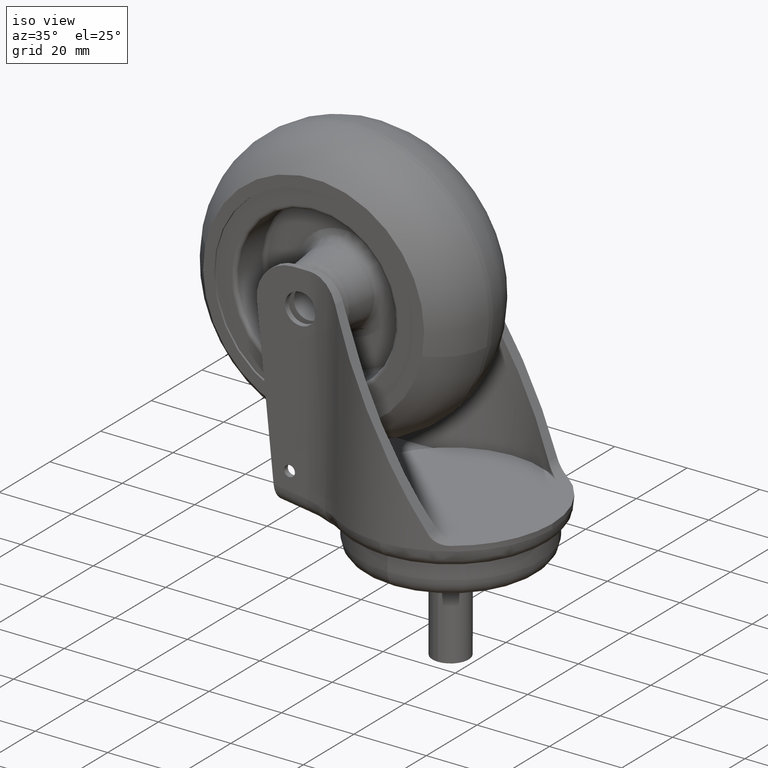
[diagram: clean part render]
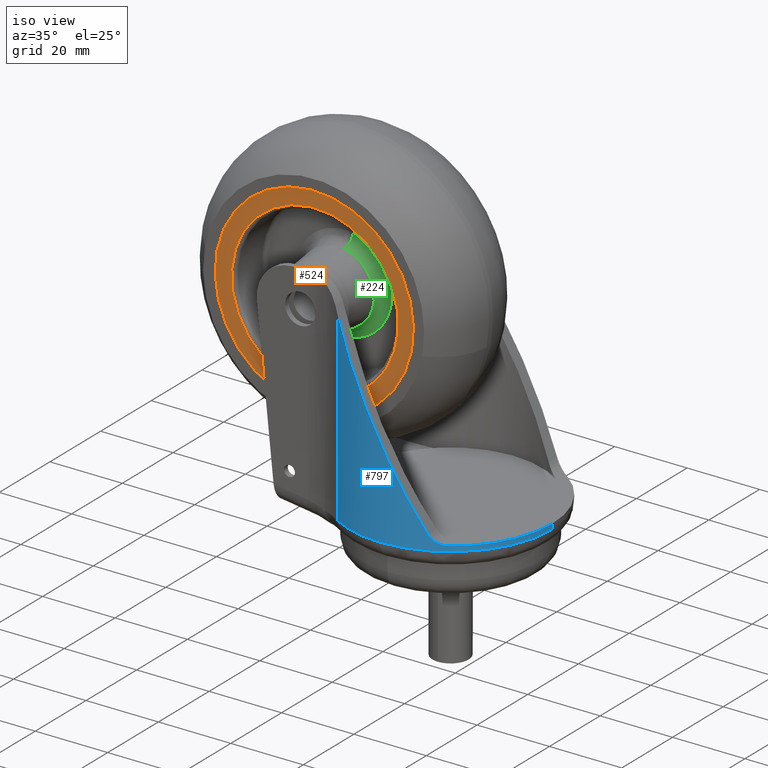
[diagram: same view with three faces highlighted in distinct colors, each labeled with its STEP entity id]
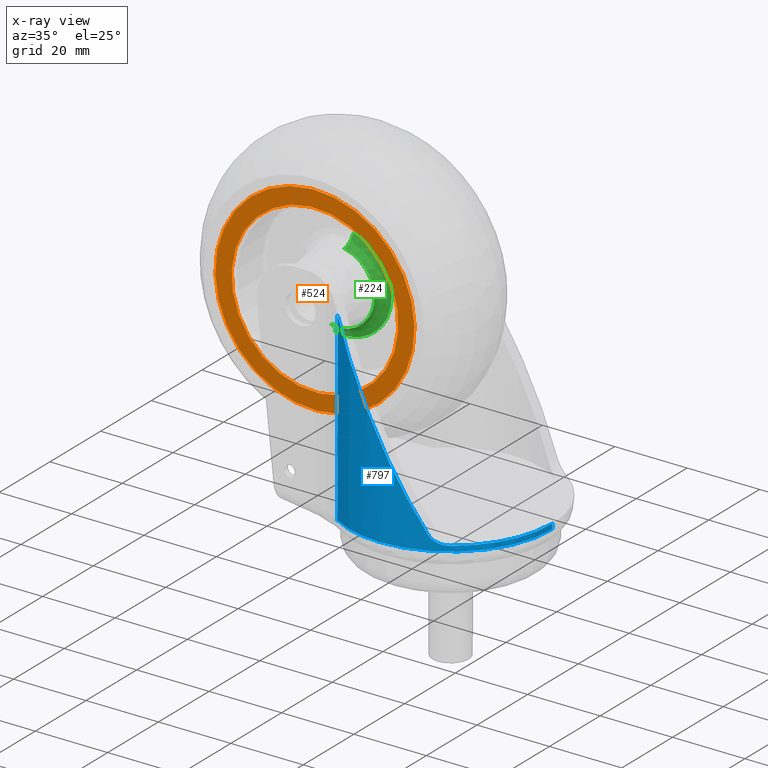
[diagram: x-ray of the same camera — body ghosted, the three highlighted faces saturated]
A machine part, iso view with three faces highlighted in distinct colors.
The next image is the same camera in x-ray (body ghosted, the three faces saturated) — at least one of them is partly hidden behind the body in this view.
Their STEP definitions:

[orange] entity #524 — the highlighted planar face has unit normal (0.0019, -1, 0.0018).
#42 = ORIENTED_EDGE ( 'NONE', *, *, #357, .F. ) ;
#43 = EDGE_CURVE ( 'NONE', #276, #275, #982, .T. ) ;
#44 = ORIENTED_EDGE ( 'NONE', *, *, #43, .F. ) ;
#115 = EDGE_CURVE ( 'NONE', #358, #234, #1318, .T. ) ;
#234 = VERTEX_POINT ( 'NONE', #1660 ) ;
#238 = EDGE_CURVE ( 'NONE', #234, #358, #1700, .T. ) ;
#275 = VERTEX_POINT ( 'NONE', #1968 ) ;
#276 = VERTEX_POINT ( 'NONE', #1962 ) ;
#357 = EDGE_CURVE ( 'NONE', #275, #276, #2254, .T. ) ;
#358 = VERTEX_POINT ( 'NONE', #2250 ) ;
#504 = EDGE_LOOP ( 'NONE', ( #4445, #4447 ) ) ;
#524 = ADVANCED_FACE ( 'NONE', ( #2635, #2636 ), #2632, .T. ) ;
#978 = DIRECTION ( 'NONE',  ( -1.000000000000000000, 0.0000000000000000000, 0.0000000000000000000 ) ) ;
#979 = DIRECTION ( 'NONE',  ( -0.0000000000000000000, -0.0000000000000000000, 1.000000000000000000 ) ) ;
#980 = CARTESIAN_POINT ( 'NONE',  ( 0.0000000000000000000, 0.0000000000000000000, 0.5000000000000000000 ) ) ;
#981 = AXIS2_PLACEMENT_3D ( 'NONE', #980, #979, #978 ) ;
#982 = CIRCLE ( 'NONE', #981, 27.50000000000000000 ) ;
#1314 = DIRECTION ( 'NONE',  ( -1.000000000000000000, 0.0000000000000000000, 0.0000000000000000000 ) ) ;
#1315 = DIRECTION ( 'NONE',  ( -0.0000000000000000000, -0.0000000000000000000, 1.000000000000000000 ) ) ;
#1316 = CARTESIAN_POINT ( 'NONE',  ( 0.0000000000000000000, 0.0000000000000000000, 0.4999999999999971700 ) ) ;
#1317 = AXIS2_PLACEMENT_3D ( 'NONE', #1316, #1315, #1314 ) ;
#1318 = CIRCLE ( 'NONE', #1317, 22.99999997239999800 ) ;
#1653 = CARTESIAN_POINT ( 'NONE',  ( 0.0000000000000000000, 0.0000000000000000000, 0.4999999999999971700 ) ) ;
#1660 = CARTESIAN_POINT ( 'NONE',  ( 22.99999998619999500, 2.816594612101510700E-015, 0.4999999999999970000 ) ) ;
#1697 = DIRECTION ( 'NONE',  ( -1.000000000000000000, 0.0000000000000000000, 0.0000000000000000000 ) ) ;
#1698 = DIRECTION ( 'NONE',  ( -0.0000000000000000000, -0.0000000000000000000, 1.000000000000000000 ) ) ;
#1699 = AXIS2_PLACEMENT_3D ( 'NONE', #1653, #1698, #1697 ) ;
#1700 = CIRCLE ( 'NONE', #1699, 22.99999997239999800 ) ;
#1962 = CARTESIAN_POINT ( 'NONE',  ( 27.50000000000000000, 3.367667473011537500E-015, 0.5000000000000000000 ) ) ;
#1968 = CARTESIAN_POINT ( 'NONE',  ( -27.50000000000000000, 0.0000000000000000000, 0.5000000000000000000 ) ) ;
#2250 = CARTESIAN_POINT ( 'NONE',  ( -22.99999998619999500, 0.0000000000000000000, 0.4999999999999970000 ) ) ;
#2251 = DIRECTION ( 'NONE',  ( -1.000000000000000000, 0.0000000000000000000, 0.0000000000000000000 ) ) ;
#2252 = DIRECTION ( 'NONE',  ( -0.0000000000000000000, -0.0000000000000000000, 1.000000000000000000 ) ) ;
#2253 = AXIS2_PLACEMENT_3D ( 'NONE', #2259, #2252, #2251 ) ;
#2254 = CIRCLE ( 'NONE', #2253, 27.50000000000000000 ) ;
#2259 = CARTESIAN_POINT ( 'NONE',  ( 0.0000000000000000000, 0.0000000000000000000, 0.5000000000000000000 ) ) ;
#2630 = CARTESIAN_POINT ( 'NONE',  ( 27.83000000000000500, -27.83000000000000500, 0.5000000000000000000 ) ) ;
#2631 = AXIS2_PLACEMENT_3D ( 'NONE', #2630, #2679, #2678 ) ;
#2632 = PLANE ( 'NONE',  #2631 ) ;
#2635 = FACE_BOUND ( 'NONE', #504, .T. ) ;
#2636 = FACE_OUTER_BOUND ( 'NONE', #4450, .T. ) ;
#2678 = DIRECTION ( 'NONE',  ( -1.000000000000000000, 0.0000000000000000000, 0.0000000000000000000 ) ) ;
#2679 = DIRECTION ( 'NONE',  ( 0.0000000000000000000, 0.0000000000000000000, -1.000000000000000000 ) ) ;
#4445 = ORIENTED_EDGE ( 'NONE', *, *, #115, .T. ) ;
#4447 = ORIENTED_EDGE ( 'NONE', *, *, #238, .T. ) ;
#4450 = EDGE_LOOP ( 'NONE', ( #42, #44 ) ) ;

[blue] entity #797 — the highlighted cylindrical surface (partial cylindrical patch) has radius 28 mm, axis along (0.0004, -0.0018, -1).
#611 = EDGE_CURVE ( 'NONE', #622, #2749, #2829, .T. ) ;
#620 = EDGE_CURVE ( 'NONE', #621, #622, #2862, .T. ) ;
#621 = VERTEX_POINT ( 'NONE', #2863 ) ;
#622 = VERTEX_POINT ( 'NONE', #2864 ) ;
#649 = VERTEX_POINT ( 'NONE', #2941 ) ;
#673 = VERTEX_POINT ( 'NONE', #2994 ) ;
#675 = EDGE_CURVE ( 'NONE', #673, #621, #3021, .T. ) ;
#706 = EDGE_CURVE ( 'NONE', #649, #673, #3095, .T. ) ;
#797 = ADVANCED_FACE ( 'NONE', ( #3289 ), #3286, .T. ) ;
#798 = EDGE_LOOP ( 'NONE', ( #799, #800, #801, #802, #803, #804, #807 ) ) ;
#799 = ORIENTED_EDGE ( 'NONE', *, *, #2762, .F. ) ;
#800 = ORIENTED_EDGE ( 'NONE', *, *, #611, .F. ) ;
#801 = ORIENTED_EDGE ( 'NONE', *, *, #620, .F. ) ;
#802 = ORIENTED_EDGE ( 'NONE', *, *, #675, .F. ) ;
#803 = ORIENTED_EDGE ( 'NONE', *, *, #706, .F. ) ;
#804 = ORIENTED_EDGE ( 'NONE', *, *, #805, .F. ) ;
#805 = EDGE_CURVE ( 'NONE', #806, #649, #3323, .T. ) ;
#806 = VERTEX_POINT ( 'NONE', #3319 ) ;
#807 = ORIENTED_EDGE ( 'NONE', *, *, #808, .F. ) ;
#808 = EDGE_CURVE ( 'NONE', #2737, #806, #3374, .T. ) ;
#2737 = VERTEX_POINT ( 'NONE', #3581 ) ;
#2749 = VERTEX_POINT ( 'NONE', #3580 ) ;
#2762 = EDGE_CURVE ( 'NONE', #2749, #2737, #3579, .T. ) ;
#2829 = CIRCLE ( 'NONE', #2878, 27.99999999999996100 ) ;
#2844 = CARTESIAN_POINT ( 'NONE',  ( 23.01393247269172400, 55.94863355094688000, 6.000000005548310300 ) ) ;
#2845 = CARTESIAN_POINT ( 'NONE',  ( 23.29655240200954200, 55.54081203107488600, 5.999999999900329500 ) ) ;
#2846 = CARTESIAN_POINT ( 'NONE',  ( 23.56775280416935200, 55.12585690281572000, 6.050187921509298400 ) ) ;
#2847 = CARTESIAN_POINT ( 'NONE',  ( 23.94629834866366700, 54.51318108539644000, 6.205849762226960400 ) ) ;
#2848 = CARTESIAN_POINT ( 'NONE',  ( 24.06822551550755300, 54.30996594885628100, 6.271163318686742400 ) ) ;
#2849 = CARTESIAN_POINT ( 'NONE',  ( 24.30370712182362800, 53.90627286728452100, 6.430985804865145800 ) ) ;
#2850 = CARTESIAN_POINT ( 'NONE',  ( 24.41727905718400700, 53.70566895731793300, 6.525820389434001000 ) ) ;
#2851 = CARTESIAN_POINT ( 'NONE',  ( 24.63065716963273000, 53.31839350357257200, 6.741947551104491500 ) ) ;
#2852 = CARTESIAN_POINT ( 'NONE',  ( 24.73123743525135500, 53.13041735666850900, 6.863672921685750200 ) ) ;
#2853 = CARTESIAN_POINT ( 'NONE',  ( 24.92070933793214800, 52.76715360342238600, 7.136099177263825600 ) ) ;
#2854 = CARTESIAN_POINT ( 'NONE',  ( 25.01023085303414500, 52.59056640006289000, 7.288176208737797700 ) ) ;
#2855 = CARTESIAN_POINT ( 'NONE',  ( 25.25574183194515500, 52.09477337133509400, 7.780564506749428200 ) ) ;
#2856 = CARTESIAN_POINT ( 'NONE',  ( 25.38958211871979400, 51.80829551109377500, 8.155031640080231600 ) ) ;
#2857 = CARTESIAN_POINT ( 'NONE',  ( 25.49634714170517900, 51.57308439568586800, 8.580378194376583800 ) ) ;
#2862 = B_SPLINE_CURVE_WITH_KNOTS ( 'NONE', 3,
 ( #2857, #2856, #2855, #2854, #2853, #2852, #2851, #2850, #2849, #2848, #2847, #2846, #2845, #2844 ),
 .UNSPECIFIED., .F., .F.,
 ( 4, 2, 2, 2, 2, 2, 4 ),
 ( 2.800782441977977300E-012, 0.001470027368630176600, 0.002205041051544873000, 0.002940054734459569200, 0.003675068417374265400, 0.004410082100288961200, 0.005880109466118353700 ),
 .UNSPECIFIED. ) ;
#2863 = CARTESIAN_POINT ( 'NONE',  ( 25.49634714170517900, 51.57308439568586800, 8.580378194376583800 ) ) ;
#2864 = CARTESIAN_POINT ( 'NONE',  ( 23.01393247269172400, 55.94863355094688000, 6.000000005548310300 ) ) ;
#2875 = DIRECTION ( 'NONE',  ( -2.841959862429958500E-014, 1.000000000000000000, -6.195440985631462700E-017 ) ) ;
#2876 = DIRECTION ( 'NONE',  ( 2.168404344970999200E-019, 6.239583502654050900E-017, 1.000000000000000000 ) ) ;
#2877 = CARTESIAN_POINT ( 'NONE',  ( 0.0000000000000000000, 40.00000000000007100, 6.000000011096553000 ) ) ;
#2878 = AXIS2_PLACEMENT_3D ( 'NONE', #2877, #2876, #2875 ) ;
#2941 = CARTESIAN_POINT ( 'NONE',  ( 23.91666662794473600, 25.44001863261550500, 4.582575698354421700 ) ) ;
#2994 = CARTESIAN_POINT ( 'NONE',  ( 23.91666666688644600, 25.44001869672717900, 55.83838887351849000 ) ) ;
#3017 = CARTESIAN_POINT ( 'NONE',  ( 25.49634714170517900, 51.57308439568586800, 8.580378194376583800 ) ) ;
#3018 = CARTESIAN_POINT ( 'NONE',  ( 29.40576235070434700, 42.96035818703045100, 24.15529434978879000 ) ) ;
#3019 = CARTESIAN_POINT ( 'NONE',  ( 28.83506269703815100, 33.51912511465482700, 41.22844981108524800 ) ) ;
#3020 = CARTESIAN_POINT ( 'NONE',  ( 23.91666666688644600, 25.44001869672717900, 55.83838887351849000 ) ) ;
#3021 =( BOUNDED_CURVE ( )  B_SPLINE_CURVE ( 3, ( #3020, #3019, #3018, #3017 ),
 .UNSPECIFIED., .F., .T. ) 
 B_SPLINE_CURVE_WITH_KNOTS ( ( 4, 4 ),
 ( 4.165538811436182900, 5.138490922005777500 ),
 .UNSPECIFIED. ) 
 CURVE ( )  GEOMETRIC_REPRESENTATION_ITEM ( )  RATIONAL_B_SPLINE_CURVE ( ( 1.000000000000000000, 0.9226572242052055700, 0.9226572242052055700, 1.000000000000000000 ) ) 
 REPRESENTATION_ITEM ( '' )  );
#3092 = DIRECTION ( 'NONE',  ( 2.168404344970999200E-019, 4.336808689941998500E-019, 1.000000000000000000 ) ) ;
#3093 = VECTOR ( 'NONE', #3092, 1000.000000000000000 ) ;
#3094 = CARTESIAN_POINT ( 'NONE',  ( 23.91666666711737200, 25.44001869703083300, 33.61603557450025900 ) ) ;
#3095 = LINE ( 'NONE', #3094, #3093 ) ;
#3286 = CYLINDRICAL_SURFACE ( 'NONE', #3288, 27.99999999999996800 ) ;
#3288 = AXIS2_PLACEMENT_3D ( 'NONE', #3326, #3325, #3324 ) ;
#3289 = FACE_OUTER_BOUND ( 'NONE', #798, .T. ) ;
#3318 = CARTESIAN_POINT ( 'NONE',  ( 0.0000000000000000000, 40.00000000000007100, 4.582575695000070200 ) ) ;
#3319 = CARTESIAN_POINT ( 'NONE',  ( 27.99999999997497500, 39.99999999712855500, 4.582575695000000100 ) ) ;
#3320 = DIRECTION ( 'NONE',  ( -1.000000000000000000, 0.0000000000000000000, 0.0000000000000000000 ) ) ;
#3321 = DIRECTION ( 'NONE',  ( -2.168404344970999200E-019, -4.336808689941998500E-019, -1.000000000000000000 ) ) ;
#3322 = AXIS2_PLACEMENT_3D ( 'NONE', #3327, #3321, #3320 ) ;
#3323 = CIRCLE ( 'NONE', #3322, 28.00000000177618300 ) ;
#3324 = DIRECTION ( 'NONE',  ( 2.110806104557659100E-018, 1.000000000000000000, 0.0000000000000000000 ) ) ;
#3325 = DIRECTION ( 'NONE',  ( -2.168404344970999200E-019, -6.239583502654050900E-017, -1.000000000000000000 ) ) ;
#3326 = CARTESIAN_POINT ( 'NONE',  ( -3.469446951953614200E-014, 40.00000000000000700, 29.65824663100025700 ) ) ;
#3327 = CARTESIAN_POINT ( 'NONE',  ( -1.876349770002505600E-009, 39.99999999999997900, 4.582575695000070200 ) ) ;
#3371 = DIRECTION ( 'NONE',  ( -1.000000000000000000, 0.0000000000000000000, 0.0000000000000000000 ) ) ;
#3372 = DIRECTION ( 'NONE',  ( -2.168404344970999200E-019, -4.336808689941998500E-019, -1.000000000000000000 ) ) ;
#3373 = AXIS2_PLACEMENT_3D ( 'NONE', #3318, #3372, #3371 ) ;
#3374 = CIRCLE ( 'NONE', #3373, 28.00000000000006400 ) ;
#3576 = DIRECTION ( 'NONE',  ( -2.168404344970999200E-019, -6.239583502654050900E-017, -1.000000000000000000 ) ) ;
#3577 = VECTOR ( 'NONE', #3576, 1000.000000000000000 ) ;
#3578 = CARTESIAN_POINT ( 'NONE',  ( -3.463536694860852600E-014, 67.99999999999997200, 29.65824663100025700 ) ) ;
#3579 = LINE ( 'NONE', #3578, #3577 ) ;
#3580 = CARTESIAN_POINT ( 'NONE',  ( -3.463521385858947700E-014, 68.00000000000007100, 6.000000011096551200 ) ) ;
#3581 = CARTESIAN_POINT ( 'NONE',  ( -3.464080436798959400E-014, 67.99999999999997200, 4.582575695000070200 ) ) ;

[green] entity #224 — the highlighted face is a freeform B-spline surface patch.
#50 = VERTEX_POINT ( 'NONE', #971 ) ;
#54 = EDGE_CURVE ( 'NONE', #4383, #55, #1158, .T. ) ;
#55 = VERTEX_POINT ( 'NONE', #1047 ) ;
#209 = EDGE_CURVE ( 'NONE', #55, #50, #1476, .T. ) ;
#212 = ORIENTED_EDGE ( 'NONE', *, *, #54, .F. ) ;
#213 = ORIENTED_EDGE ( 'NONE', *, *, #209, .F. ) ;
#214 = EDGE_LOOP ( 'NONE', ( #217, #216, #213, #212 ) ) ;
#215 = EDGE_CURVE ( 'NONE', #50, #4379, #1613, .T. ) ;
#216 = ORIENTED_EDGE ( 'NONE', *, *, #215, .F. ) ;
#217 = ORIENTED_EDGE ( 'NONE', *, *, #4385, .F. ) ;
#224 = ADVANCED_FACE ( 'NONE', ( #1652 ), #1645, .F. ) ;
#970 = CARTESIAN_POINT ( 'NONE',  ( -0.6861557346868574200, 13.18292539414258300, 12.00000000000000200 ) ) ;
#971 = CARTESIAN_POINT ( 'NONE',  ( -13.19574168211199900, 0.0000000000000000000, 12.00000000000000000 ) ) ;
#1047 = CARTESIAN_POINT ( 'NONE',  ( 13.19574168211199700, 0.0000000000000000000, 12.00000000000000000 ) ) ;
#1154 = CARTESIAN_POINT ( 'NONE',  ( 13.19574168211199700, 0.0000000000000000000, 12.00000000000000000 ) ) ;
#1155 = CARTESIAN_POINT ( 'NONE',  ( 11.58365521400000400, 0.0000000000000000000, 12.00000000000000400 ) ) ;
#1156 = CARTESIAN_POINT ( 'NONE',  ( 10.38455482500000200, 0.0000000000000000000, 10.92251170099999900 ) ) ;
#1157 = CARTESIAN_POINT ( 'NONE',  ( 10.21281421800000200, 0.0000000000000000000, 9.319599371000006000 ) ) ;
#1158 =( BOUNDED_CURVE ( )  B_SPLINE_CURVE ( 3, ( #1157, #1156, #1155, #1154 ),
 .UNSPECIFIED., .F., .T. ) 
 B_SPLINE_CURVE_WITH_KNOTS ( ( 4, 4 ),
 ( 0.0000000000000000000, 1.000000000000000000 ),
 .UNSPECIFIED. ) 
 CURVE ( )  GEOMETRIC_REPRESENTATION_ITEM ( )  RATIONAL_B_SPLINE_CURVE ( ( 1.000000000000000000, 0.8292126026081271300, 0.8292126026081271300, 1.000000000000000000 ) ) 
 REPRESENTATION_ITEM ( '' )  );
#1232 = CARTESIAN_POINT ( 'NONE',  ( -1.507810224673058300, 13.11001658916897300, 12.00000000000000000 ) ) ;
#1233 = CARTESIAN_POINT ( 'NONE',  ( -1.369983834658605500, 13.12515191411409000, 11.99999999999999800 ) ) ;
#1238 = CARTESIAN_POINT ( 'NONE',  ( -1.096585602367908600, 13.15083028864955100, 12.00000000000000000 ) ) ;
#1446 = CARTESIAN_POINT ( 'NONE',  ( 11.37715869186486400, 6.707991119252446000, 12.00000000000000000 ) ) ;
#1447 = CARTESIAN_POINT ( 'NONE',  ( 11.67786157447173200, 6.158807824908294900, 11.99999999999999800 ) ) ;
#1448 = CARTESIAN_POINT ( 'NONE',  ( 11.86707456287641100, 5.770641027297453500, 12.00000000000000000 ) ) ;
#1449 = CARTESIAN_POINT ( 'NONE',  ( 11.87158266843757900, 5.761357503660608600, 12.00000000000000000 ) ) ;
#1450 = CARTESIAN_POINT ( 'NONE',  ( 11.88178103518647600, 5.740294822919153700, 12.00000000000000000 ) ) ;
#1451 = CARTESIAN_POINT ( 'NONE',  ( 11.89703511957618800, 5.708684274932988200, 12.00000000000000200 ) ) ;
#1452 = CARTESIAN_POINT ( 'NONE',  ( 11.93232372301675800, 5.634810641514090600, 12.00000000000000200 ) ) ;
#1453 = CARTESIAN_POINT ( 'NONE',  ( 12.00168388935622600, 5.486600622204880700, 12.00000000000000000 ) ) ;
#1454 = CARTESIAN_POINT ( 'NONE',  ( 12.13553605986845300, 5.188329573700827700, 11.99999999999999800 ) ) ;
#1455 = CARTESIAN_POINT ( 'NONE',  ( 12.38376775222610600, 4.584383437150169300, 12.00000000000000200 ) ) ;
#1456 = CARTESIAN_POINT ( 'NONE',  ( 12.56315609081812400, 4.054022680890944300, 11.99999999999999800 ) ) ;
#1457 = CARTESIAN_POINT ( 'NONE',  ( 12.67118563536193500, 3.683582201322155300, 12.00000000000000200 ) ) ;
#1458 = CARTESIAN_POINT ( 'NONE',  ( 12.67371171359811800, 3.674876684289475100, 12.00000000000000400 ) ) ;
#1459 = CARTESIAN_POINT ( 'NONE',  ( 12.67947555856836500, 3.654938368976657200, 12.00000000000000000 ) ) ;
#1460 = CARTESIAN_POINT ( 'NONE',  ( 12.68808547019586400, 3.625023566805142900, 12.00000000000000400 ) ) ;
#1461 = CARTESIAN_POINT ( 'NONE',  ( 12.70792427319826800, 3.555171057322196400, 12.00000000000000000 ) ) ;
#1462 = CARTESIAN_POINT ( 'NONE',  ( 12.74659791602272900, 3.415260820692052500, 12.00000000000000400 ) ) ;
#1463 = CARTESIAN_POINT ( 'NONE',  ( 12.81992934895021100, 3.134619476774753700, 12.00000000000000000 ) ) ;
#1464 = CARTESIAN_POINT ( 'NONE',  ( 12.95052880391945700, 2.570053306312056800, 12.00000000000000400 ) ) ;
#1465 = CARTESIAN_POINT ( 'NONE',  ( 13.03493391808899600, 2.080510618553032700, 12.00000000000000200 ) ) ;
#1466 = CARTESIAN_POINT ( 'NONE',  ( 13.08034118267034000, 1.741370141510923300, 12.00000000000000400 ) ) ;
#1467 = CARTESIAN_POINT ( 'NONE',  ( 13.08138716642244500, 1.733486265240548300, 12.00000000000000500 ) ) ;
#1468 = CARTESIAN_POINT ( 'NONE',  ( 13.08378065056979800, 1.715323385987396000, 12.00000000000000200 ) ) ;
#1469 = CARTESIAN_POINT ( 'NONE',  ( 13.08734239947150100, 1.688077048277683500, 12.00000000000000000 ) ) ;
#1470 = CARTESIAN_POINT ( 'NONE',  ( 13.09545380567349900, 1.624488128478506900, 11.99999999999999600 ) ) ;
#1471 = CARTESIAN_POINT ( 'NONE',  ( 13.11087925313626100, 1.497253761640706400, 12.00000000000000200 ) ) ;
#1472 = CARTESIAN_POINT ( 'NONE',  ( 13.13854068829680000, 1.242558919007337600, 12.00000000000000000 ) ) ;
#1473 = CARTESIAN_POINT ( 'NONE',  ( 13.18110571955797800, 0.7322647979094850700, 11.99999999999999600 ) ) ;
#1474 = CARTESIAN_POINT ( 'NONE',  ( 13.19571945082200400, 0.2933193755437271100, 12.00000000000000200 ) ) ;
#1475 = CARTESIAN_POINT ( 'NONE',  ( 13.19574168211199700, 0.0000000000000000000, 12.00000000000000000 ) ) ;
#1476 = B_SPLINE_CURVE_WITH_KNOTS ( 'NONE', 3,
 ( #1475, #1474, #1473, #1472, #1471, #1470, #1469, #1468, #1467, #1466, #1465, #1464, #1463, #1462, #1461, #1460, #1459, #1458, #1457, #1456, #1455, #1454, #1453, #1452, #1451, #1450, #1449, #1448, #1447, #1446, #1537, #1536, #1535, #1534, #1533, #1532, #1531, #1530, #1529, #1528, #1527, #1526, #1525, #1524, #1523, #1522, #1521, #1520, #1519, #1518, #1517, #1516, #1515, #1514, #1513, #1512, #1511, #1510, #1509, #1508, #1506, #1505, #1504, #1503, #1502, #1501, #1500, #1499, #1498, #1497, #1496, #1495, #1494, #1493, #1492, #1491, #1490, #1489, #1488, #1487, #970, #1238, #1233, #1232, #1608, #1607, #1606, #1605, #1604, #1603, #1602, #1601, #1600, #1599, #1598, #1597, #1596, #1595, #1594, #1593, #1592, #1591, #1590, #1589, #1588, #1587, #1586, #1585, #1584, #1583, #1582, #1581, #1580, #1579, #1578, #1577, #1576, #1575, #1574, #1573, #1572, #1571, #1570, #1569, #1568, #1567, #1566, #1565, #1564, #1563, #1562, #1561, #1560, #1559, #1634, #1633, #1632, #1631, #1630, #1629, #1628, #1627, #1626, #1625, #1624, #1623, #1622, #1621, #1620, #1619, #1618, #1617, #1616, #1615, #1614 ),
 .UNSPECIFIED., .F., .F.,
 ( 4, 1, 1, 1, 1, 1, 2, 2, 1, 1, 1, 1, 1, 2, 2, 1, 1, 1, 1, 1, 2, 2, 1, 1, 1, 1, 2, 2, 1, 1, 1, 2, 2, 1, 1, 1, 2, 2, 1, 1, 2, 2, 1, 1, 2, 2, 1, 1, 2, 2, 1, 2, 2, 2, 2, 2, 1, 2, 2, 1, 1, 2, 2, 1, 1, 2, 2, 1, 1, 2, 2, 1, 1, 1, 2, 2, 1, 1, 1, 2, 2, 1, 1, 1, 1, 1, 2, 2, 1, 1, 1, 1, 1, 2, 2, 1, 1, 1, 1, 1, 2, 2, 1, 1, 1, 1, 1, 2, 2, 4 ),
 ( 0.0000000000000000000, 0.03125000000000399000, 0.04687500000000596700, 0.05468750000000694600, 0.05859375000000744500, 0.06054687500000768100, 0.06152343750000779900, 0.06250000000000791000, 0.09375000000001187900, 0.1093750000000138600, 0.1171875000000148500, 0.1210937500000153200, 0.1230468750000155600, 0.1240234375000156500, 0.1250000000000157400, 0.1562500000000182400, 0.1718750000000194600, 0.1796875000000201000, 0.1835937500000203700, 0.1855468750000205100, 0.1865234375000205700, 0.1875000000000206200, 0.2187500000000225400, 0.2343750000000234300, 0.2421875000000238700, 0.2460937500000241200, 0.2480468750000242600, 0.2500000000000243700, 0.2656250000000258700, 0.2734375000000265300, 0.2773437500000269200, 0.2792968750000270300, 0.2812500000000272000, 0.2968750000000278700, 0.3046875000000281400, 0.3085937500000283100, 0.3105468750000282600, 0.3125000000000282600, 0.3281250000000277600, 0.3359375000000275300, 0.3398437500000274200, 0.3437500000000273100, 0.3593750000000270300, 0.3671875000000268700, 0.3710937500000268100, 0.3750000000000267000, 0.3906250000000265300, 0.3984375000000264200, 0.4023437500000264200, 0.4062500000000264200, 0.4218750000000262600, 0.4296875000000261500, 0.4375000000000260300, 0.4531250000000258100, 0.4687500000000255900, 0.5000000000000252000, 0.5156250000000249800, 0.5234375000000248700, 0.5312500000000247600, 0.5468750000000245400, 0.5546875000000244200, 0.5585937500000243100, 0.5625000000000243100, 0.5781250000000242000, 0.5859375000000240900, 0.5898437500000239800, 0.5937500000000239800, 0.6093750000000239800, 0.6171875000000239800, 0.6210937500000239800, 0.6250000000000240900, 0.6406250000000240900, 0.6484375000000239800, 0.6523437500000238700, 0.6542968750000238700, 0.6562500000000239800, 0.6718750000000238700, 0.6796875000000238700, 0.6835937500000237600, 0.6855468750000236500, 0.6875000000000236500, 0.7187500000000228700, 0.7343750000000224300, 0.7421875000000222000, 0.7460937500000219800, 0.7480468750000219800, 0.7490234375000218700, 0.7500000000000217600, 0.7812500000000207600, 0.7968750000000202100, 0.8046875000000198700, 0.8085937500000197600, 0.8105468750000196500, 0.8115234375000196500, 0.8125000000000196500, 0.8437500000000171000, 0.8593750000000157700, 0.8671875000000151000, 0.8710937500000148800, 0.8730468750000146500, 0.8740234375000145400, 0.8750000000000144300, 0.9062500000000112100, 0.9218750000000095500, 0.9296875000000087700, 0.9335937500000084400, 0.9355468750000082200, 0.9365234375000081000, 0.9375000000000079900, 1.000000000000000000 ),
 .UNSPECIFIED. ) ;
#1487 = CARTESIAN_POINT ( 'NONE',  ( -0.2747283092707552600, 13.19575313070515900, 12.00000000000000200 ) ) ;
#1488 = CARTESIAN_POINT ( 'NONE',  ( 0.5494566185415024100, 13.19571877858966000, 11.99999999999999800 ) ) ;
#1489 = CARTESIAN_POINT ( 'NONE',  ( 1.097871702115660800, 13.16148854917344800, 11.99999999999999800 ) ) ;
#1490 = CARTESIAN_POINT ( 'NONE',  ( 1.915638470498589400, 13.05883235031598800, 12.00000000000000000 ) ) ;
#1491 = CARTESIAN_POINT ( 'NONE',  ( 2.183064819588838000, 13.01677534785082100, 11.99999999999999800 ) ) ;
#1492 = CARTESIAN_POINT ( 'NONE',  ( 2.718109159482287500, 12.91566460645363900, 12.00000000000000200 ) ) ;
#1493 = CARTESIAN_POINT ( 'NONE',  ( 2.983974352098634200, 12.85683090042853400, 11.99999999999999600 ) ) ;
#1494 = CARTESIAN_POINT ( 'NONE',  ( 3.380286675027608800, 12.75616283840111000, 12.00000000000000000 ) ) ;
#1495 = CARTESIAN_POINT ( 'NONE',  ( 3.508058560589713900, 12.72160091280487900, 11.99999999999999800 ) ) ;
#1496 = CARTESIAN_POINT ( 'NONE',  ( 3.765999241591844200, 12.64765553577196800, 12.00000000000000200 ) ) ;
#1497 = CARTESIAN_POINT ( 'NONE',  ( 4.150974950892061700, 12.53091003946171600, 12.00000000000000400 ) ) ;
#1498 = CARTESIAN_POINT ( 'NONE',  ( 4.530144723583355000, 12.39668225086885700, 11.99999999999999800 ) ) ;
#1499 = CARTESIAN_POINT ( 'NONE',  ( 4.842894013821144500, 12.27511337577334600, 11.99999999999999800 ) ) ;
#1500 = CARTESIAN_POINT ( 'NONE',  ( 4.902597080043662500, 12.25138275790214100, 11.99999999999999600 ) ) ;
#1501 = CARTESIAN_POINT ( 'NONE',  ( 5.024223030039968800, 12.20201181578257500, 12.00000000000000000 ) ) ;
#1502 = CARTESIAN_POINT ( 'NONE',  ( 5.206034980760655600, 12.12662885337395700, 12.00000000000000000 ) ) ;
#1503 = CARTESIAN_POINT ( 'NONE',  ( 5.625874045859193400, 11.94144942981566400, 12.00000000000000200 ) ) ;
#1504 = CARTESIAN_POINT ( 'NONE',  ( 5.978212410372687000, 11.76680561887167700, 11.99999999999999800 ) ) ;
#1505 = CARTESIAN_POINT ( 'NONE',  ( 6.267647885642120700, 11.61242544822325200, 12.00000000000000000 ) ) ;
#1506 = CARTESIAN_POINT ( 'NONE',  ( 6.322084264755363700, 11.58286853491505600, 11.99999999999999100 ) ) ;
#1508 = CARTESIAN_POINT ( 'NONE',  ( 6.433673523723988400, 11.52126290125531800, 11.99999999999999800 ) ) ;
#1509 = CARTESIAN_POINT ( 'NONE',  ( 6.600323196978412600, 11.42768176454384000, 12.00000000000000400 ) ) ;
#1510 = CARTESIAN_POINT ( 'NONE',  ( 6.984032928182504200, 11.20111697533066500, 12.00000000000000400 ) ) ;
#1511 = CARTESIAN_POINT ( 'NONE',  ( 7.304116401118196000, 10.99284634991411900, 12.00000000000000000 ) ) ;
#1512 = CARTESIAN_POINT ( 'NONE',  ( 7.565957860574545900, 10.81146958725455900, 12.00000000000000200 ) ) ;
#1513 = CARTESIAN_POINT ( 'NONE',  ( 7.614533602261808200, 10.77729997857476400, 11.99999999999999500 ) ) ;
#1514 = CARTESIAN_POINT ( 'NONE',  ( 7.714673204039274700, 10.70584821321170200, 12.00000000000000000 ) ) ;
#1515 = CARTESIAN_POINT ( 'NONE',  ( 7.864078174904404900, 10.59766376101575200, 12.00000000000000200 ) ) ;
#1516 = CARTESIAN_POINT ( 'NONE',  ( 8.207058750982250600, 10.33818574349899300, 12.00000000000000200 ) ) ;
#1517 = CARTESIAN_POINT ( 'NONE',  ( 8.491388920293298200, 10.10369436438258000, 11.99999999999999800 ) ) ;
#1518 = CARTESIAN_POINT ( 'NONE',  ( 8.699809956470185000, 9.921785005137103000, 11.99999999999999800 ) ) ;
#1519 = CARTESIAN_POINT ( 'NONE',  ( 8.721096137243256100, 9.903075467329513200, 12.00000000000000200 ) ) ;
#1520 = CARTESIAN_POINT ( 'NONE',  ( 8.765330489052626500, 9.863943785863778400, 12.00000000000000000 ) ) ;
#1521 = CARTESIAN_POINT ( 'NONE',  ( 8.831472294894457100, 9.805036271034298400, 11.99999999999999800 ) ) ;
#1522 = CARTESIAN_POINT ( 'NONE',  ( 8.984335122086436700, 9.666115454682787000, 12.00000000000000400 ) ) ;
#1523 = CARTESIAN_POINT ( 'NONE',  ( 9.284188564047873600, 9.382394028315427900, 12.00000000000000000 ) ) ;
#1524 = CARTESIAN_POINT ( 'NONE',  ( 9.531139150147659200, 9.129124588004566800, 11.99999999999999600 ) ) ;
#1525 = CARTESIAN_POINT ( 'NONE',  ( 9.711318764788922300, 8.934132684630572600, 12.00000000000000200 ) ) ;
#1526 = CARTESIAN_POINT ( 'NONE',  ( 9.729528625676836700, 8.914293105082499800, 11.99999999999999800 ) ) ;
#1527 = CARTESIAN_POINT ( 'NONE',  ( 9.767547874806416200, 8.872617495889965500, 12.00000000000000200 ) ) ;
#1528 = CARTESIAN_POINT ( 'NONE',  ( 9.824366179560090700, 8.809933819498256800, 12.00000000000000000 ) ) ;
#1529 = CARTESIAN_POINT ( 'NONE',  ( 9.955468241400430100, 8.662480069697242200, 12.00000000000000200 ) ) ;
#1530 = CARTESIAN_POINT ( 'NONE',  ( 10.21177643474155300, 8.362805217213814800, 12.00000000000000200 ) ) ;
#1531 = CARTESIAN_POINT ( 'NONE',  ( 10.42136186273756400, 8.097768453002737800, 11.99999999999999800 ) ) ;
#1532 = CARTESIAN_POINT ( 'NONE',  ( 10.57349727915780400, 7.894904577374650700, 11.99999999999999800 ) ) ;
#1533 = CARTESIAN_POINT ( 'NONE',  ( 10.58795655058776000, 7.875495308703047000, 11.99999999999999800 ) ) ;
#1534 = CARTESIAN_POINT ( 'NONE',  ( 10.61912066350066100, 7.833425117556682700, 12.00000000000000400 ) ) ;
#1535 = CARTESIAN_POINT ( 'NONE',  ( 10.66566773919515800, 7.770199338987707100, 12.00000000000000200 ) ) ;
#1536 = CARTESIAN_POINT ( 'NONE',  ( 10.77288392675829500, 7.621829079380806800, 12.00000000000000400 ) ) ;
#1537 = CARTESIAN_POINT ( 'NONE',  ( 10.98174167898853200, 7.321714788383157000, 12.00000000000000000 ) ) ;
#1559 = CARTESIAN_POINT ( 'NONE',  ( -11.85621650823002700, 5.792914081084510300, 12.00000000000000200 ) ) ;
#1560 = CARTESIAN_POINT ( 'NONE',  ( -11.84984573854357100, 5.805937025859537700, 12.00000000000000000 ) ) ;
#1561 = CARTESIAN_POINT ( 'NONE',  ( -11.83830112879438600, 5.829439842515462500, 12.00000000000000000 ) ) ;
#1562 = CARTESIAN_POINT ( 'NONE',  ( -11.82093470183291300, 5.864663515823818500, 12.00000000000000000 ) ) ;
#1563 = CARTESIAN_POINT ( 'NONE',  ( -11.78006645255879700, 5.946638225147959900, 12.00000000000000000 ) ) ;
#1564 = CARTESIAN_POINT ( 'NONE',  ( -11.69694360855471300, 6.109732196881436600, 12.00000000000000000 ) ) ;
#1565 = CARTESIAN_POINT ( 'NONE',  ( -11.52515253872300200, 6.432498352689204800, 12.00000000000000000 ) ) ;
#1566 = CARTESIAN_POINT ( 'NONE',  ( -11.15938887176550400, 7.064343513668004200, 12.00000000000000200 ) ) ;
#1567 = CARTESIAN_POINT ( 'NONE',  ( -10.80785168186921300, 7.582461393415425000, 11.99999999999999800 ) ) ;
#1568 = CARTESIAN_POINT ( 'NONE',  ( -10.54874152094159000, 7.927913245955764400, 12.00000000000000000 ) ) ;
#1569 = CARTESIAN_POINT ( 'NONE',  ( -10.53920579040807600, 7.940587298096635200, 11.99999999999999800 ) ) ;
#1570 = CARTESIAN_POINT ( 'NONE',  ( -10.52176638245206400, 7.963681087282567200, 12.00000000000000200 ) ) ;
#1571 = CARTESIAN_POINT ( 'NONE',  ( -10.49555541615396900, 7.998273270150763300, 12.00000000000000000 ) ) ;
#1572 = CARTESIAN_POINT ( 'NONE',  ( -10.43403351424319700, 8.078648857134924200, 11.99999999999999600 ) ) ;
#1573 = CARTESIAN_POINT ( 'NONE',  ( -10.30953778822748400, 8.238042005603462700, 12.00000000000000200 ) ) ;
#1574 = CARTESIAN_POINT ( 'NONE',  ( -10.05473864741931300, 8.551396200541358200, 11.99999999999999800 ) ) ;
#1575 = CARTESIAN_POINT ( 'NONE',  ( -9.521909610696075900, 9.156376182420451900, 12.00000000000000200 ) ) ;
#1576 = CARTESIAN_POINT ( 'NONE',  ( -9.025374856178583400, 9.637681753179590400, 12.00000000000000400 ) ) ;
#1577 = CARTESIAN_POINT ( 'NONE',  ( -8.654856889023085000, 9.961016868850929700, 11.99999999999999800 ) ) ;
#1578 = CARTESIAN_POINT ( 'NONE',  ( -8.630203650938908000, 9.982388494350894700, 12.00000000000000200 ) ) ;
#1579 = CARTESIAN_POINT ( 'NONE',  ( -8.583560477864837800, 10.02252320216298600, 12.00000000000000400 ) ) ;
#1580 = CARTESIAN_POINT ( 'NONE',  ( -8.513400957802380400, 10.08246863350672000, 12.00000000000000200 ) ) ;
#1581 = CARTESIAN_POINT ( 'NONE',  ( -8.348332087830588200, 10.22054489402120400, 11.99999999999999600 ) ) ;
#1582 = CARTESIAN_POINT ( 'NONE',  ( -8.012741055249451300, 10.48951176456666300, 12.00000000000000000 ) ) ;
#1583 = CARTESIAN_POINT ( 'NONE',  ( -7.715743097086927600, 10.70773653849101800, 12.00000000000000200 ) ) ;
#1584 = CARTESIAN_POINT ( 'NONE',  ( -7.488320377632819100, 10.86524598994840200, 11.99999999999999800 ) ) ;
#1585 = CARTESIAN_POINT ( 'NONE',  ( -7.461089811524645100, 10.88396554263273500, 11.99999999999999800 ) ) ;
#1586 = CARTESIAN_POINT ( 'NONE',  ( -7.408413301921304300, 10.91988881513325700, 12.00000000000000200 ) ) ;
#1587 = CARTESIAN_POINT ( 'NONE',  ( -7.329221785071587700, 10.97347639353829700, 12.00000000000000400 ) ) ;
#1588 = CARTESIAN_POINT ( 'NONE',  ( -7.143204311975942700, 11.09643276406318400, 11.99999999999999600 ) ) ;
#1589 = CARTESIAN_POINT ( 'NONE',  ( -6.766220297332790100, 11.33402025543223600, 12.00000000000000400 ) ) ;
#1590 = CARTESIAN_POINT ( 'NONE',  ( -6.434607024578339100, 11.52339482001014700, 12.00000000000000000 ) ) ;
#1591 = CARTESIAN_POINT ( 'NONE',  ( -6.153549232090711900, 11.67327814793863900, 12.00000000000000400 ) ) ;
#1592 = CARTESIAN_POINT ( 'NONE',  ( -6.093628438850905700, 11.70467997970437500, 12.00000000000000200 ) ) ;
#1593 = CARTESIAN_POINT ( 'NONE',  ( -5.976898946880795400, 11.76471820539285000, 12.00000000000000000 ) ) ;
#1594 = CARTESIAN_POINT ( 'NONE',  ( -5.801207568692850800, 11.85343527226258200, 12.00000000000000000 ) ) ;
#1595 = CARTESIAN_POINT ( 'NONE',  ( -5.387081037958208400, 12.05105985998459900, 12.00000000000000200 ) ) ;
#1596 = CARTESIAN_POINT ( 'NONE',  ( -5.024949757392330500, 12.20436910379078700, 12.00000000000000000 ) ) ;
#1597 = CARTESIAN_POINT ( 'NONE',  ( -4.719192755368903900, 12.32319166254286300, 11.99999999999999800 ) ) ;
#1598 = CARTESIAN_POINT ( 'NONE',  ( -4.654923237066972400, 12.34762036066891600, 11.99999999999999800 ) ) ;
#1599 = CARTESIAN_POINT ( 'NONE',  ( -4.529050475628530100, 12.39434645704149700, 11.99999999999999600 ) ) ;
#1600 = CARTESIAN_POINT ( 'NONE',  ( -4.339789490739041100, 12.46296848809647900, 12.00000000000000400 ) ) ;
#1601 = CARTESIAN_POINT ( 'NONE',  ( -3.895017626874116800, 12.61281676603093200, 12.00000000000000400 ) ) ;
#1602 = CARTESIAN_POINT ( 'NONE',  ( -3.508362487922257200, 12.72365278507095500, 11.99999999999999800 ) ) ;
#1603 = CARTESIAN_POINT ( 'NONE',  ( -3.183137587250202600, 12.80623537757841400, 11.99999999999999800 ) ) ;
#1604 = CARTESIAN_POINT ( 'NONE',  ( -3.115807330590494800, 12.82278921265946000, 11.99999999999999800 ) ) ;
#1605 = CARTESIAN_POINT ( 'NONE',  ( -2.983154924160530600, 12.85430103259535500, 11.99999999999999800 ) ) ;
#1606 = CARTESIAN_POINT ( 'NONE',  ( -2.783899144879736100, 12.90001022885255500, 12.00000000000000400 ) ) ;
#1607 = CARTESIAN_POINT ( 'NONE',  ( -2.317028805773605700, 12.99575528459279600, 12.00000000000000200 ) ) ;
#1608 = CARTESIAN_POINT ( 'NONE',  ( -1.913528193766728800, 13.05912007146748100, 12.00000000000000000 ) ) ;
#1609 = CARTESIAN_POINT ( 'NONE',  ( -10.21281421800000200, -1.047341605450960500E-009, 9.319599371000002500 ) ) ;
#1610 = CARTESIAN_POINT ( 'NONE',  ( -10.38455482500000200, 0.0000000000000000000, 10.92251170099999900 ) ) ;
#1611 = CARTESIAN_POINT ( 'NONE',  ( -11.58365521400000400, 0.0000000000000000000, 12.00000000000000400 ) ) ;
#1612 = CARTESIAN_POINT ( 'NONE',  ( -13.19574168211199900, 0.0000000000000000000, 12.00000000000000000 ) ) ;
#1613 =( BOUNDED_CURVE ( )  B_SPLINE_CURVE ( 3, ( #1612, #1611, #1610, #1609 ),
 .UNSPECIFIED., .F., .T. ) 
 B_SPLINE_CURVE_WITH_KNOTS ( ( 4, 4 ),
 ( 0.0000000000000000000, 1.000000000000000000 ),
 .UNSPECIFIED. ) 
 CURVE ( )  GEOMETRIC_REPRESENTATION_ITEM ( )  RATIONAL_B_SPLINE_CURVE ( ( 1.000000000000000000, 0.8292126026081271300, 0.8292126026081271300, 1.000000000000000000 ) ) 
 REPRESENTATION_ITEM ( '' )  );
#1614 = CARTESIAN_POINT ( 'NONE',  ( -13.19574168211199900, 0.0000000000000000000, 12.00000000000000000 ) ) ;
#1615 = CARTESIAN_POINT ( 'NONE',  ( -13.19569719577624400, 0.5869800825971174300, 12.00000000000000200 ) ) ;
#1616 = CARTESIAN_POINT ( 'NONE',  ( -13.15677170409482200, 1.170862457818346600, 12.00000000000000000 ) ) ;
#1617 = CARTESIAN_POINT ( 'NONE',  ( -13.07774947840670200, 1.760721886098797400, 12.00000000000000000 ) ) ;
#1618 = CARTESIAN_POINT ( 'NONE',  ( -13.07619691768900700, 1.772219372985321500, 11.99999999999999800 ) ) ;
#1619 = CARTESIAN_POINT ( 'NONE',  ( -13.07339287805648800, 1.792783801606599600, 12.00000000000000200 ) ) ;
#1620 = CARTESIAN_POINT ( 'NONE',  ( -13.06915106624192200, 1.823622625838188900, 12.00000000000000400 ) ) ;
#1621 = CARTESIAN_POINT ( 'NONE',  ( -13.05900323878077400, 1.895525151476247900, 12.00000000000000000 ) ) ;
#1622 = CARTESIAN_POINT ( 'NONE',  ( -13.03770651761648800, 2.039111279143159400, 12.00000000000000000 ) ) ;
#1623 = CARTESIAN_POINT ( 'NONE',  ( -12.99110881032004600, 2.325407840040113200, 11.99999999999999600 ) ) ;
#1624 = CARTESIAN_POINT ( 'NONE',  ( -12.88189633585564100, 2.894498184086529100, 12.00000000000000400 ) ) ;
#1625 = CARTESIAN_POINT ( 'NONE',  ( -12.76082782653495500, 3.376285145702037300, 11.99999999999999800 ) ) ;
#1626 = CARTESIAN_POINT ( 'NONE',  ( -12.66500839362078200, 3.704761499296808300, 11.99999999999999800 ) ) ;
#1627 = CARTESIAN_POINT ( 'NONE',  ( -12.66134267337548300, 3.717272742724036000, 12.00000000000000000 ) ) ;
#1628 = CARTESIAN_POINT ( 'NONE',  ( -12.65473004788007700, 3.739720824163239100, 12.00000000000000000 ) ) ;
#1629 = CARTESIAN_POINT ( 'NONE',  ( -12.64476782356609900, 3.773375955437204600, 12.00000000000000400 ) ) ;
#1630 = CARTESIAN_POINT ( 'NONE',  ( -12.62121963100388700, 3.851785658882611200, 12.00000000000000400 ) ) ;
#1631 = CARTESIAN_POINT ( 'NONE',  ( -12.57291123589458200, 4.008129320997940500, 12.00000000000000000 ) ) ;
#1632 = CARTESIAN_POINT ( 'NONE',  ( -12.47144640573645400, 4.318913666126813500, 11.99999999999999800 ) ) ;
#1633 = CARTESIAN_POINT ( 'NONE',  ( -12.24912458566209500, 4.932870439977325100, 12.00000000000000200 ) ) ;
#1634 = CARTESIAN_POINT ( 'NONE',  ( -12.02531932315586600, 5.446070103722515700, 12.00000000000000000 ) ) ;
#1635 = CARTESIAN_POINT ( 'NONE',  ( 11.58365521400000000, 23.16731042700000000, 12.00000000000000000 ) ) ;
#1636 = CARTESIAN_POINT ( 'NONE',  ( -11.58365521400000000, 23.16731042700000000, 12.00000000000000000 ) ) ;
#1637 = CARTESIAN_POINT ( 'NONE',  ( -11.58365521400000400, 0.0000000000000000000, 12.00000000000000000 ) ) ;
#1638 = CARTESIAN_POINT ( 'NONE',  ( 13.19574167999999900, 0.0000000000000000000, 12.00000000000000000 ) ) ;
#1639 = CARTESIAN_POINT ( 'NONE',  ( 13.19574167999999900, 26.39148335999999900, 12.00000000000000000 ) ) ;
#1640 = CARTESIAN_POINT ( 'NONE',  ( -13.19574167999999900, 26.39148335999999900, 12.00000000000000000 ) ) ;
#1641 = CARTESIAN_POINT ( 'NONE',  ( -13.19574167999999900, 0.0000000000000000000, 12.00000000000000000 ) ) ;
#1645 =( BOUNDED_SURFACE ( )  B_SPLINE_SURFACE ( 3, 3, ( 
 ( #1641, #1640, #1639, #1638 ),
 ( #1637, #1636, #1635, #1682 ),
 ( #1681, #1680, #1679, #1678 ),
 ( #1677, #1676, #1675, #1674 ) ),
 .UNSPECIFIED., .F., .F., .T. ) 
 B_SPLINE_SURFACE_WITH_KNOTS ( ( 4, 4 ),
 ( 4, 4 ),
 ( 0.0000000000000000000, 1.000000000000000000 ),
 ( 0.0000000000000000000, 1.000000000000000000 ),
 .UNSPECIFIED. ) 
 GEOMETRIC_REPRESENTATION_ITEM ( )  RATIONAL_B_SPLINE_SURFACE ( (
 ( 1.000000000000000000, 0.3333333333333330400, 0.3333333333333330400, 1.000000000000000000),
 ( 0.8292126026081271300, 0.2764042008693760600, 0.2764042008693760600, 0.8292126026081271300),
 ( 0.8292126026081271300, 0.2764042008693760600, 0.2764042008693760600, 0.8292126026081271300),
 ( 1.000000000000000000, 0.3333333333333330400, 0.3333333333333330400, 1.000000000000000000) ) ) 
 REPRESENTATION_ITEM ( '' )  SURFACE ( )  );
#1652 = FACE_OUTER_BOUND ( 'NONE', #214, .T. ) ;
#1674 = CARTESIAN_POINT ( 'NONE',  ( 10.21281421800000200, 0.0000000000000000000, 9.319599371000002500 ) ) ;
#1675 = CARTESIAN_POINT ( 'NONE',  ( 10.21281421800000200, 20.42562843699999700, 9.319599371000002500 ) ) ;
#1676 = CARTESIAN_POINT ( 'NONE',  ( -10.21281421800000200, 20.42562843699999700, 9.319599371000002500 ) ) ;
#1677 = CARTESIAN_POINT ( 'NONE',  ( -10.21281421800000200, 0.0000000000000000000, 9.319599371000002500 ) ) ;
#1678 = CARTESIAN_POINT ( 'NONE',  ( 10.38455482500000200, 0.0000000000000000000, 10.92251170099999900 ) ) ;
#1679 = CARTESIAN_POINT ( 'NONE',  ( 10.38455482500000400, 20.76910965000000100, 10.92251170100000100 ) ) ;
#1680 = CARTESIAN_POINT ( 'NONE',  ( -10.38455482500000400, 20.76910965000000100, 10.92251170100000100 ) ) ;
#1681 = CARTESIAN_POINT ( 'NONE',  ( -10.38455482500000200, 0.0000000000000000000, 10.92251170099999900 ) ) ;
#1682 = CARTESIAN_POINT ( 'NONE',  ( 11.58365521400000400, 0.0000000000000000000, 12.00000000000000000 ) ) ;
#3686 = CARTESIAN_POINT ( 'NONE',  ( -10.21281421800000200, -1.047341605450960500E-009, 9.319599371000002500 ) ) ;
#3713 = DIRECTION ( 'NONE',  ( -1.000000000000000000, 0.0000000000000000000, 0.0000000000000000000 ) ) ;
#3714 = DIRECTION ( 'NONE',  ( 0.0000000000000000000, 0.0000000000000000000, -1.000000000000000000 ) ) ;
#3715 = CARTESIAN_POINT ( 'NONE',  ( 0.0000000000000000000, 0.0000000000000000000, 9.319599371000002500 ) ) ;
#3716 = AXIS2_PLACEMENT_3D ( 'NONE', #3715, #3714, #3713 ) ;
#3717 = CIRCLE ( 'NONE', #3716, 10.21281421800000200 ) ;
#3722 = CARTESIAN_POINT ( 'NONE',  ( 10.21281421800000200, 0.0000000000000000000, 9.319599371000006000 ) ) ;
#4379 = VERTEX_POINT ( 'NONE', #3686 ) ;
#4383 = VERTEX_POINT ( 'NONE', #3722 ) ;
#4385 = EDGE_CURVE ( 'NONE', #4379, #4383, #3717, .T. ) ;